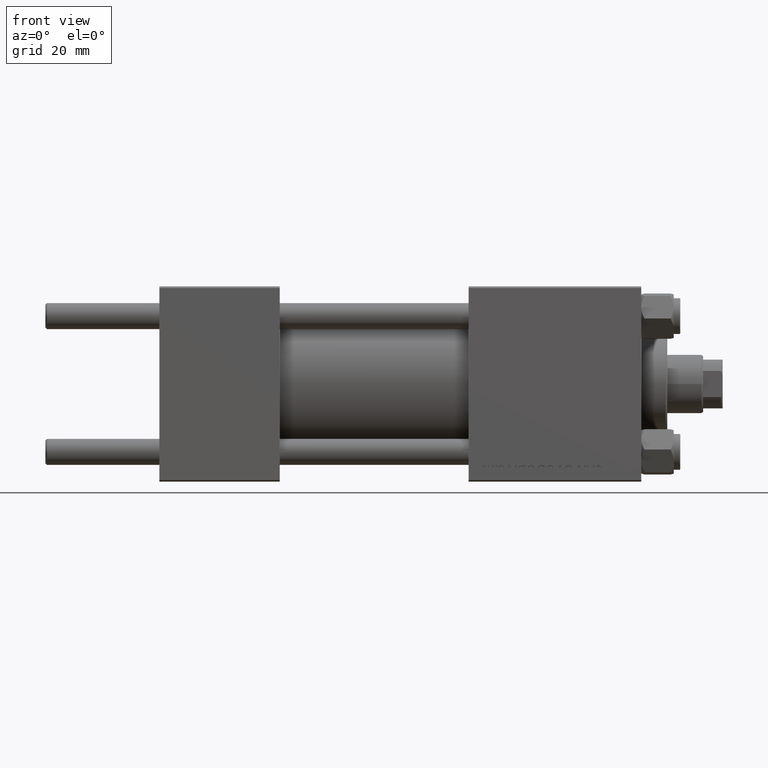
[diagram: clean part render]
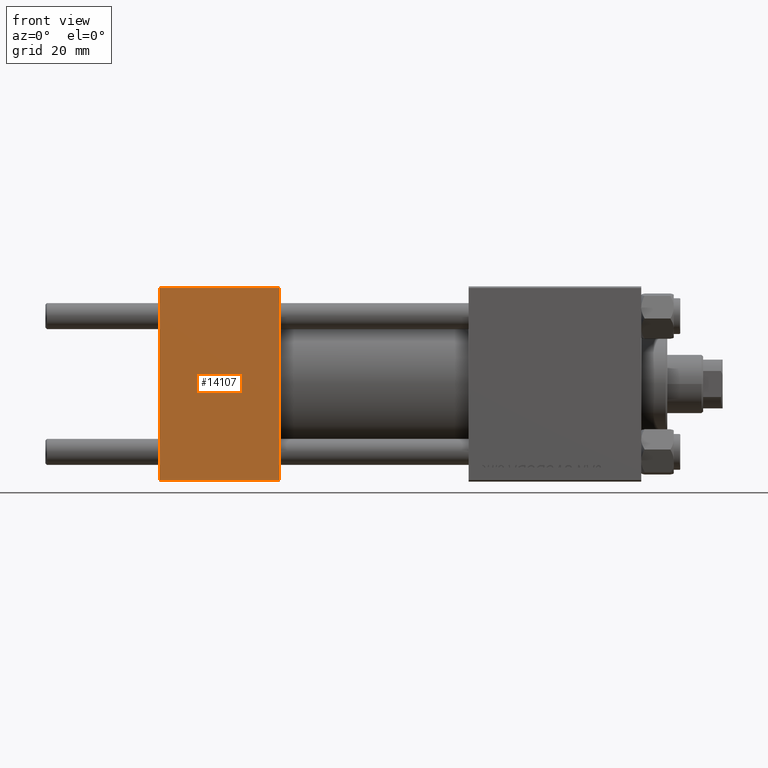
[diagram: same view with one face highlighted and labeled with its STEP entity id]
A machine part, front view. The second image highlights one B-rep face of the part: STEP entity #14107.
In plain terms, the highlighted planar face has unit normal (0, 1, 0).
Its self-contained STEP definition (entity closure, byte-faithful):
#4023 = FACE_OUTER_BOUND ( 'NONE', #17289, .T. ) ;
#6541 = CARTESIAN_POINT ( 'NONE',  ( 0.000000000000000000, -30.00000000000000000, -29.50000000000001776 ) ) ;
#6988 = ORIENTED_EDGE ( 'NONE', *, *, #26403, .T. ) ;
#13317 = VECTOR ( 'NONE', #20149, 1000.000000000000000 ) ;
#14107 = ADVANCED_FACE ( 'NONE', ( #4023 ), #34678, .F. ) ;
#14334 = ORIENTED_EDGE ( 'NONE', *, *, #43425, .T. ) ;
#15549 = CARTESIAN_POINT ( 'NONE',  ( 37.00000000000000000, -30.00000000000000000, 29.49999999999999289 ) ) ;
#17289 = EDGE_LOOP ( 'NONE', ( #6988, #14334, #19706, #24686 ) ) ;
#19358 = DIRECTION ( 'NONE',  ( 0.000000000000000000, 0.000000000000000000, -1.000000000000000000 ) ) ;
#19706 = ORIENTED_EDGE ( 'NONE', *, *, #43797, .F. ) ;
#19719 = DIRECTION ( 'NONE',  ( 0.000000000000000000, -0.000000000000000000, 1.000000000000000000 ) ) ;
#20149 = DIRECTION ( 'NONE',  ( -1.000000000000000000, 0.000000000000000000, 0.000000000000000000 ) ) ;
#20967 = DIRECTION ( 'NONE',  ( 0.000000000000000000, 0.000000000000000000, -1.000000000000000000 ) ) ;
#22339 = AXIS2_PLACEMENT_3D ( 'NONE', #31877, #27072, #19719 ) ;
#23196 = VECTOR ( 'NONE', #42985, 1000.000000000000000 ) ;
#24686 = ORIENTED_EDGE ( 'NONE', *, *, #34995, .T. ) ;
#25423 = CARTESIAN_POINT ( 'NONE',  ( 0.000000000000000000, -30.00000000000000000, 29.49999999999999289 ) ) ;
#26403 = EDGE_CURVE ( 'NONE', #40861, #40410, #32114, .T. ) ;
#27072 = DIRECTION ( 'NONE',  ( -0.000000000000000000, 1.000000000000000000, 0.000000000000000000 ) ) ;
#28495 = CARTESIAN_POINT ( 'NONE',  ( 37.00000000000000000, -30.00000000000000000, 29.49999999999999289 ) ) ;
#29680 = VECTOR ( 'NONE', #19358, 1000.000000000000000 ) ;
#31374 = CARTESIAN_POINT ( 'NONE',  ( 37.00000000000000000, -30.00000000000000000, -29.50000000000001776 ) ) ;
#31877 = CARTESIAN_POINT ( 'NONE',  ( 37.00000000000000000, -30.00000000000000000, 29.99999999999999289 ) ) ;
#32114 = LINE ( 'NONE', #47529, #38240 ) ;
#33807 = LINE ( 'NONE', #42366, #29680 ) ;
#34678 = PLANE ( 'NONE',  #22339 ) ;
#34995 = EDGE_CURVE ( 'NONE', #44921, #40861, #35347, .T. ) ;
#35347 = LINE ( 'NONE', #28495, #13317 ) ;
#38240 = VECTOR ( 'NONE', #20967, 1000.000000000000000 ) ;
#40410 = VERTEX_POINT ( 'NONE', #6541 ) ;
#40723 = CARTESIAN_POINT ( 'NONE',  ( 37.00000000000000000, -30.00000000000000000, -29.50000000000001776 ) ) ;
#40861 = VERTEX_POINT ( 'NONE', #25423 ) ;
#42366 = CARTESIAN_POINT ( 'NONE',  ( 37.00000000000000000, -30.00000000000000000, 29.99999999999999289 ) ) ;
#42985 = DIRECTION ( 'NONE',  ( 1.000000000000000000, 0.000000000000000000, 0.000000000000000000 ) ) ;
#43425 = EDGE_CURVE ( 'NONE', #40410, #48137, #43493, .T. ) ;
#43493 = LINE ( 'NONE', #31374, #23196 ) ;
#43797 = EDGE_CURVE ( 'NONE', #44921, #48137, #33807, .T. ) ;
#44921 = VERTEX_POINT ( 'NONE', #15549 ) ;
#47529 = CARTESIAN_POINT ( 'NONE',  ( 0.000000000000000000, -30.00000000000000000, 29.99999999999999289 ) ) ;
#48137 = VERTEX_POINT ( 'NONE', #40723 ) ;